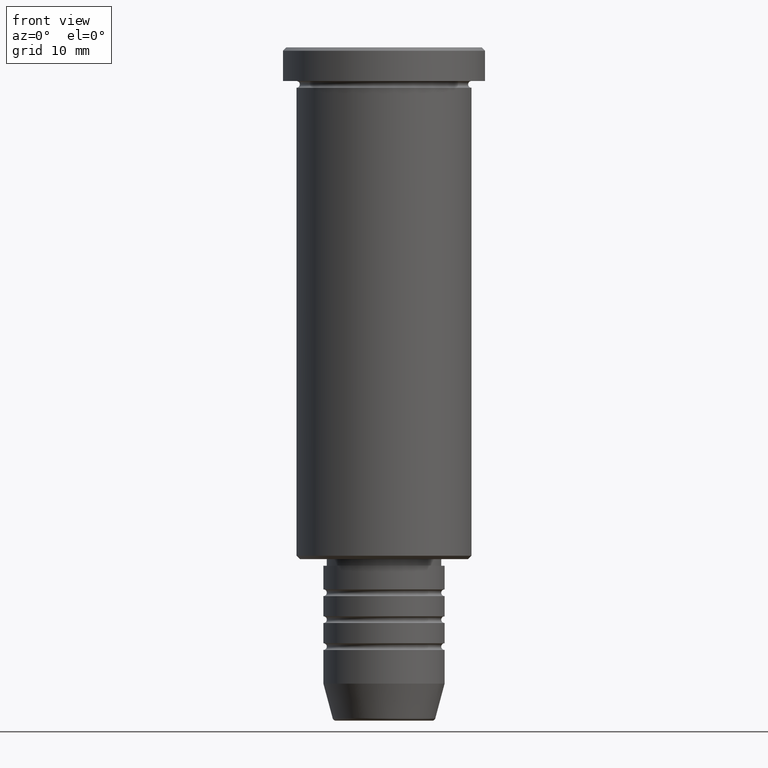
[diagram: clean part render]
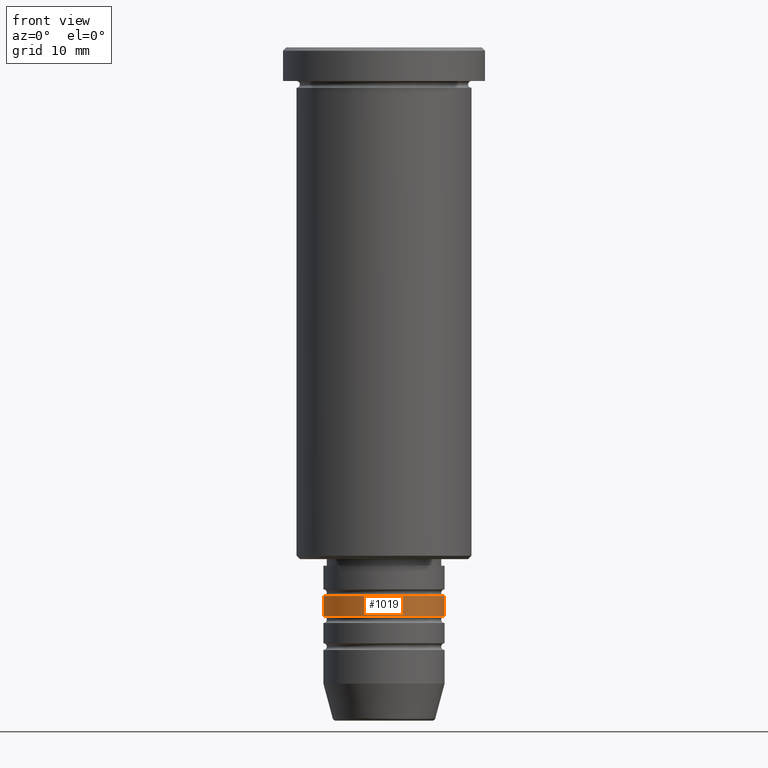
[diagram: same view with one face highlighted and labeled with its STEP entity id]
A machine part, front view. The second image highlights one B-rep face of the part: STEP entity #1019.
In plain terms, the highlighted cylindrical surface (partial cylindrical patch) has radius 9 mm, axis along (-0, -0, 1).
Its self-contained STEP definition (entity closure, byte-faithful):
#17 = DIRECTION ( 'NONE',  ( -0.000000000000000000, -0.000000000000000000, 1.000000000000000000 ) ) ;
#92 = CARTESIAN_POINT ( 'NONE',  ( 9.000000000000001776, 0.000000000000000000, 0.000000000000000000 ) ) ;
#101 = CARTESIAN_POINT ( 'NONE',  ( 0.000000000000000000, 0.000000000000000000, -84.49999999999998579 ) ) ;
#170 = VERTEX_POINT ( 'NONE', #567 ) ;
#209 = CIRCLE ( 'NONE', #996, 9.000000000000000000 ) ;
#260 = ORIENTED_EDGE ( 'NONE', *, *, #913, .F. ) ;
#288 = CARTESIAN_POINT ( 'NONE',  ( -9.000000000000001776, 1.102182119232617911E-15, 0.000000000000000000 ) ) ;
#305 = DIRECTION ( 'NONE',  ( 1.000000000000000000, 0.000000000000000000, 0.000000000000000000 ) ) ;
#326 = AXIS2_PLACEMENT_3D ( 'NONE', #868, #482, #383 ) ;
#347 = AXIS2_PLACEMENT_3D ( 'NONE', #101, #17, #1121 ) ;
#374 = CYLINDRICAL_SURFACE ( 'NONE', #326, 9.000000000000001776 ) ;
#383 = DIRECTION ( 'NONE',  ( 1.000000000000000000, 0.000000000000000000, 0.000000000000000000 ) ) ;
#406 = LINE ( 'NONE', #92, #709 ) ;
#482 = DIRECTION ( 'NONE',  ( -0.000000000000000000, -0.000000000000000000, 1.000000000000000000 ) ) ;
#530 = ORIENTED_EDGE ( 'NONE', *, *, #826, .T. ) ;
#567 = CARTESIAN_POINT ( 'NONE',  ( -9.000000000000000000, 1.102182119232617714E-15, -81.49999999999998579 ) ) ;
#584 = VECTOR ( 'NONE', #927, 1000.000000000000000 ) ;
#679 = CARTESIAN_POINT ( 'NONE',  ( 0.000000000000000000, 0.000000000000000000, -81.49999999999998579 ) ) ;
#709 = VECTOR ( 'NONE', #818, 1000.000000000000000 ) ;
#758 = LINE ( 'NONE', #288, #584 ) ;
#775 = DIRECTION ( 'NONE',  ( -0.000000000000000000, -0.000000000000000000, 1.000000000000000000 ) ) ;
#792 = EDGE_LOOP ( 'NONE', ( #260, #1075, #530, #1007 ) ) ;
#818 = DIRECTION ( 'NONE',  ( -0.000000000000000000, -0.000000000000000000, 1.000000000000000000 ) ) ;
#826 = EDGE_CURVE ( 'NONE', #919, #1098, #406, .T. ) ;
#859 = CARTESIAN_POINT ( 'NONE',  ( 9.000000000000000000, 0.000000000000000000, -81.49999999999998579 ) ) ;
#861 = EDGE_CURVE ( 'NONE', #998, #919, #879, .T. ) ;
#864 = CARTESIAN_POINT ( 'NONE',  ( -9.000000000000001776, 1.102182119232617911E-15, -84.49999999999998579 ) ) ;
#868 = CARTESIAN_POINT ( 'NONE',  ( 0.000000000000000000, 0.000000000000000000, 0.000000000000000000 ) ) ;
#879 = CIRCLE ( 'NONE', #347, 9.000000000000001776 ) ;
#913 = EDGE_CURVE ( 'NONE', #998, #170, #758, .T. ) ;
#919 = VERTEX_POINT ( 'NONE', #1024 ) ;
#927 = DIRECTION ( 'NONE',  ( -0.000000000000000000, -0.000000000000000000, 1.000000000000000000 ) ) ;
#996 = AXIS2_PLACEMENT_3D ( 'NONE', #679, #775, #305 ) ;
#998 = VERTEX_POINT ( 'NONE', #864 ) ;
#1007 = ORIENTED_EDGE ( 'NONE', *, *, #1099, .F. ) ;
#1019 = ADVANCED_FACE ( 'NONE', ( #1060 ), #374, .T. ) ;
#1024 = CARTESIAN_POINT ( 'NONE',  ( 9.000000000000001776, 0.000000000000000000, -84.49999999999998579 ) ) ;
#1060 = FACE_OUTER_BOUND ( 'NONE', #792, .T. ) ;
#1075 = ORIENTED_EDGE ( 'NONE', *, *, #861, .T. ) ;
#1098 = VERTEX_POINT ( 'NONE', #859 ) ;
#1099 = EDGE_CURVE ( 'NONE', #170, #1098, #209, .T. ) ;
#1121 = DIRECTION ( 'NONE',  ( 1.000000000000000000, 0.000000000000000000, 0.000000000000000000 ) ) ;